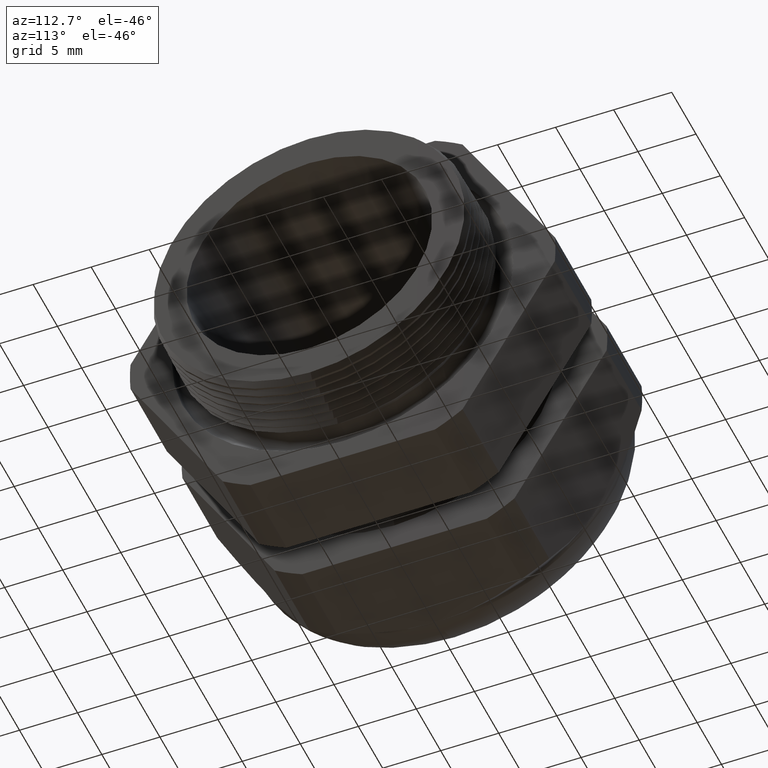
[diagram: clean part render]
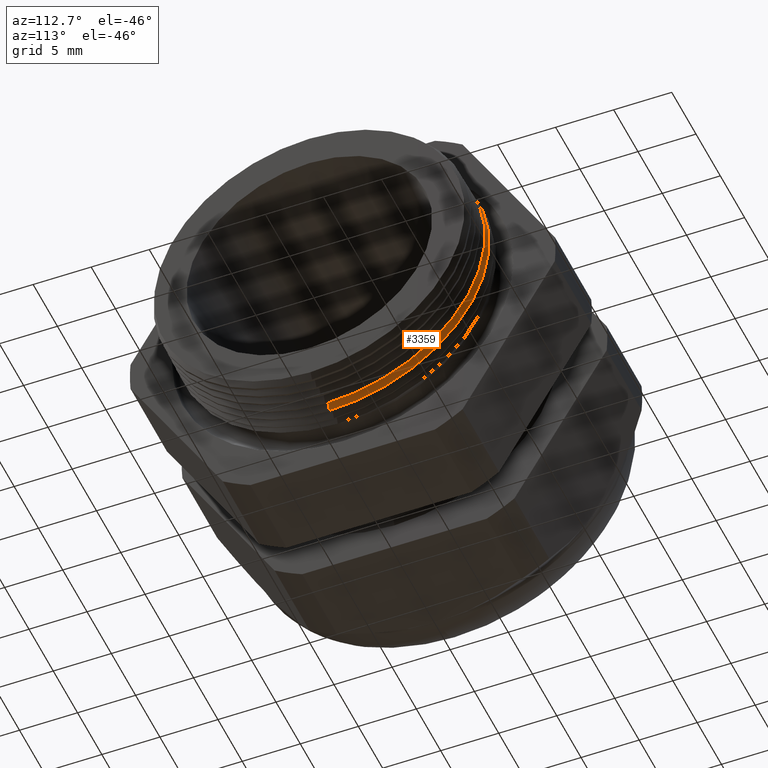
[diagram: same view with one face highlighted and labeled with its STEP entity id]
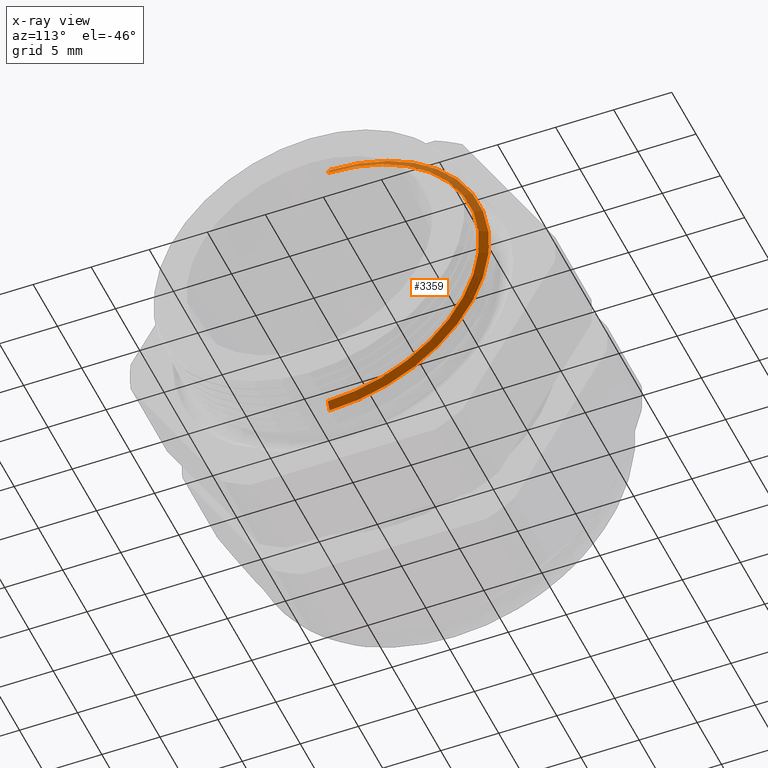
[diagram: x-ray of the same camera — body ghosted, the highlighted face saturated]
A machine part, auxiliary view. The second image highlights one B-rep face of the part: STEP entity #3359.
The next image is the same camera in x-ray: the body ghosted, the highlighted face saturated — about 2% of this face is hidden behind the body in this view.
In plain terms, the highlighted conical surface has half-angle 61.5 deg.
Its self-contained STEP definition (entity closure, byte-faithful):
#262 = ORIENTED_EDGE ( 'NONE', *, *, #794, .T. ) ;
#791 = VERTEX_POINT ( 'NONE', #2256 ) ;
#792 = EDGE_CURVE ( 'NONE', #791, #793, #2255, .T. ) ;
#793 = VERTEX_POINT ( 'NONE', #2316 ) ;
#794 = EDGE_CURVE ( 'NONE', #3325, #791, #2315, .T. ) ;
#801 = ORIENTED_EDGE ( 'NONE', *, *, #792, .T. ) ;
#802 = ORIENTED_EDGE ( 'NONE', *, *, #803, .F. ) ;
#803 = EDGE_CURVE ( 'NONE', #3332, #793, #2299, .T. ) ;
#2189 = CIRCLE ( 'NONE', #2691, 0.5135505476127620900 ) ;
#2251 = DIRECTION ( 'NONE',  ( 0.0000000000000000000, 0.0000000000000000000, 1.000000000000000000 ) ) ;
#2252 = DIRECTION ( 'NONE',  ( 1.000000000000000000, 0.0000000000000000000, 0.0000000000000000000 ) ) ;
#2253 = CARTESIAN_POINT ( 'NONE',  ( -0.2034856000580642400, 0.0000000000000000000, 0.0000000000000000000 ) ) ;
#2254 = AXIS2_PLACEMENT_3D ( 'NONE', #2253, #2252, #2251 ) ;
#2255 = CIRCLE ( 'NONE', #2254, 0.5412044876837242000 ) ;
#2256 = CARTESIAN_POINT ( 'NONE',  ( -0.2034856000580642400, 6.628322985589151800E-017, -0.5412044876837242000 ) ) ;
#2296 = DIRECTION ( 'NONE',  ( -0.4771587602596187900, 0.0000000000000000000, 0.8788171126619597200 ) ) ;
#2297 = VECTOR ( 'NONE', #2296, 39.37007874015748900 ) ;
#2298 = CARTESIAN_POINT ( 'NONE',  ( -0.2049999999999999600, 0.0000000000000000000, 0.5439936654065921100 ) ) ;
#2299 = LINE ( 'NONE', #2298, #2297 ) ;
#2312 = DIRECTION ( 'NONE',  ( -0.4771587602596187900, 1.076240564057388000E-016, -0.8788171126619597200 ) ) ;
#2313 = VECTOR ( 'NONE', #2312, 39.37007874015748900 ) ;
#2314 = CARTESIAN_POINT ( 'NONE',  ( -0.2049999999999999600, 6.662001010966193000E-017, -0.5439936654065921100 ) ) ;
#2315 = LINE ( 'NONE', #2314, #2313 ) ;
#2316 = CARTESIAN_POINT ( 'NONE',  ( -0.2034856000580642400, 0.0000000000000000000, 0.5412044876837242000 ) ) ;
#2691 = AXIS2_PLACEMENT_3D ( 'NONE', #3469, #2752, #2751 ) ;
#2711 = CARTESIAN_POINT ( 'NONE',  ( -0.1884707356790751900, 0.0000000000000000000, 0.5135505476127620900 ) ) ;
#2717 = CARTESIAN_POINT ( 'NONE',  ( -0.1884707356790751900, 6.458511889301976400E-017, -0.5135505476127620900 ) ) ;
#2751 = DIRECTION ( 'NONE',  ( 0.0000000000000000000, 0.0000000000000000000, -1.000000000000000000 ) ) ;
#2752 = DIRECTION ( 'NONE',  ( 1.000000000000000000, 0.0000000000000000000, 0.0000000000000000000 ) ) ;
#2778 = DIRECTION ( 'NONE',  ( 0.0000000000000000000, 0.0000000000000000000, 1.000000000000000000 ) ) ;
#2779 = DIRECTION ( 'NONE',  ( -1.000000000000000000, 0.0000000000000000000, 0.0000000000000000000 ) ) ;
#2780 = CARTESIAN_POINT ( 'NONE',  ( -0.2049999999999999600, 0.0000000000000000000, 0.0000000000000000000 ) ) ;
#2781 = AXIS2_PLACEMENT_3D ( 'NONE', #2780, #2779, #2778 ) ;
#2783 = CONICAL_SURFACE ( 'NONE', #2781, 0.5439936654065921100, 1.073377489976501000 ) ;
#2784 = FACE_OUTER_BOUND ( 'NONE', #3354, .T. ) ;
#3325 = VERTEX_POINT ( 'NONE', #2717 ) ;
#3332 = VERTEX_POINT ( 'NONE', #2711 ) ;
#3344 = EDGE_CURVE ( 'NONE', #3325, #3332, #2189, .T. ) ;
#3352 = ORIENTED_EDGE ( 'NONE', *, *, #3344, .F. ) ;
#3354 = EDGE_LOOP ( 'NONE', ( #3352, #262, #801, #802 ) ) ;
#3359 = ADVANCED_FACE ( 'NONE', ( #2784 ), #2783, .T. ) ;
#3469 = CARTESIAN_POINT ( 'NONE',  ( -0.1884707356790751900, 0.0000000000000000000, 0.0000000000000000000 ) ) ;